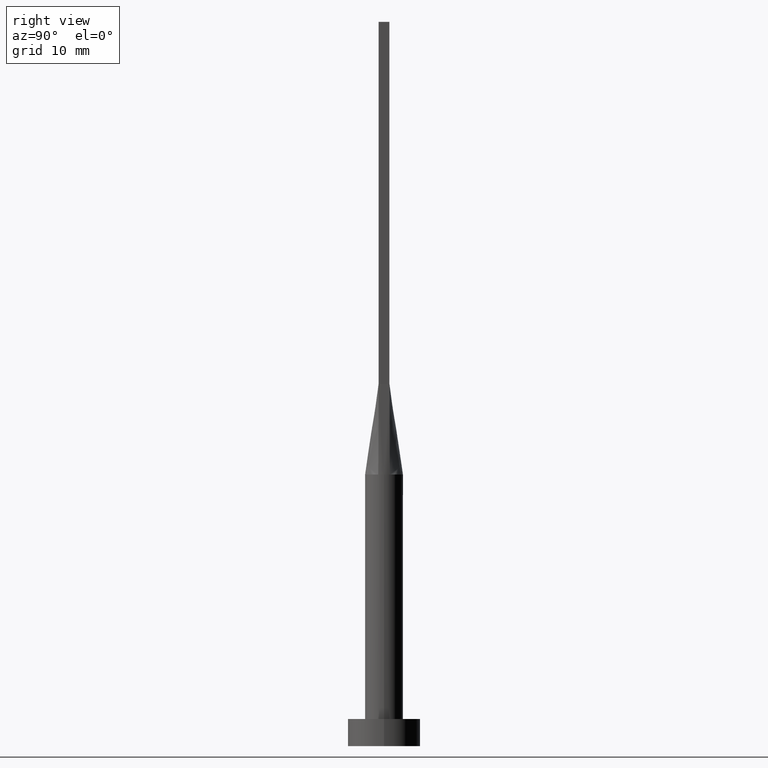
[diagram: clean part render]
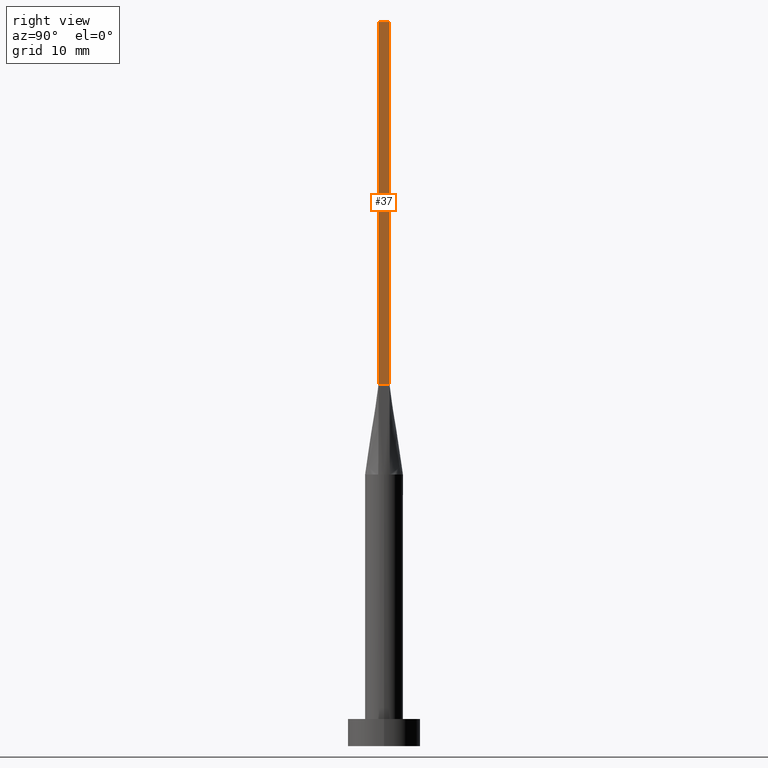
[diagram: same view with one face highlighted and labeled with its STEP entity id]
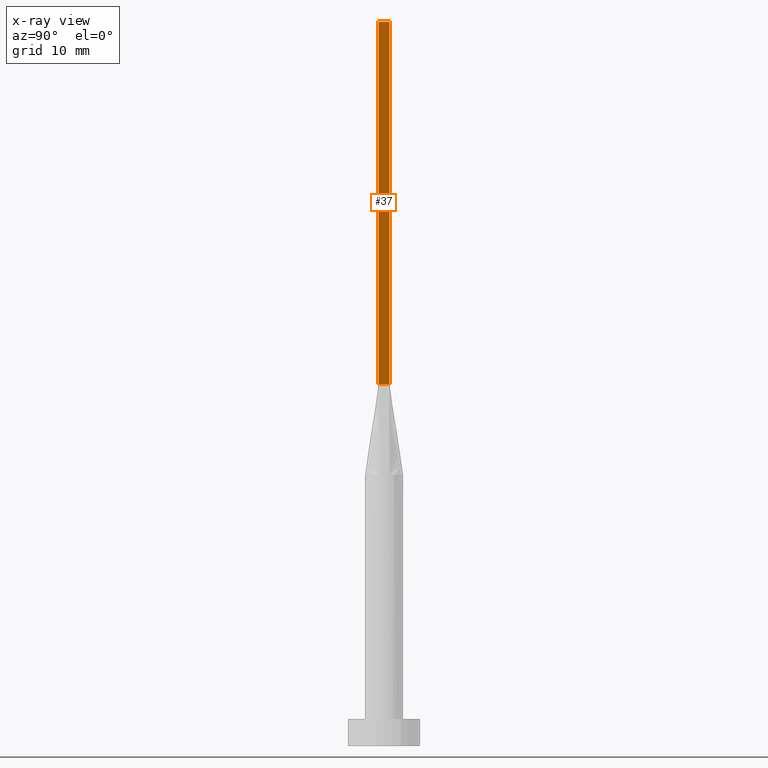
[diagram: x-ray of the same camera — body ghosted, the highlighted face saturated]
A machine part, right view. The second image highlights one B-rep face of the part: STEP entity #37.
The next image is the same camera in x-ray: the body ghosted, the highlighted face saturated — about 0% of this face is hidden behind the body in this view.
In plain terms, the highlighted planar face has unit normal (-1, 0, 0).
Its self-contained STEP definition (entity closure, byte-faithful):
#21 = EDGE_CURVE ( 'NONE', #109, #374, #120, .T. ) ;
#26 = CARTESIAN_POINT ( 'NONE',  ( 1.899999999999999023, -0.5999999999999997558, 40.00000000000000000 ) ) ;
#33 = CARTESIAN_POINT ( 'NONE',  ( 1.899999999999999689, 0.6000000000000001998, 40.00000000000000000 ) ) ;
#37 = ADVANCED_FACE ( 'NONE', ( #38 ), #348, .F. ) ;
#38 = FACE_OUTER_BOUND ( 'NONE', #502, .T. ) ;
#66 = EDGE_CURVE ( 'NONE', #215, #109, #365, .T. ) ;
#102 = CARTESIAN_POINT ( 'NONE',  ( 1.899999999999999689, 0.6000000000000001998, 40.00000000000000000 ) ) ;
#109 = VERTEX_POINT ( 'NONE', #448 ) ;
#120 = LINE ( 'NONE', #485, #299 ) ;
#124 = ORIENTED_EDGE ( 'NONE', *, *, #237, .T. ) ;
#131 = VECTOR ( 'NONE', #235, 1000.000000000000000 ) ;
#161 = ORIENTED_EDGE ( 'NONE', *, *, #21, .F. ) ;
#164 = DIRECTION ( 'NONE',  ( -1.807003620809174139E-16, 1.000000000000000000, -0.000000000000000000 ) ) ;
#170 = DIRECTION ( 'NONE',  ( -5.421010862427522170E-16, -1.000000000000000000, 0.000000000000000000 ) ) ;
#208 = LINE ( 'NONE', #383, #416 ) ;
#215 = VERTEX_POINT ( 'NONE', #344 ) ;
#218 = EDGE_CURVE ( 'NONE', #228, #374, #422, .T. ) ;
#228 = VERTEX_POINT ( 'NONE', #26 ) ;
#232 = CARTESIAN_POINT ( 'NONE',  ( 1.899999999999999023, -0.5999999999999997558, 80.00000000000000000 ) ) ;
#235 = DIRECTION ( 'NONE',  ( 5.421010862427522170E-16, 1.000000000000000000, 0.000000000000000000 ) ) ;
#237 = EDGE_CURVE ( 'NONE', #215, #228, #208, .T. ) ;
#260 = DIRECTION ( 'NONE',  ( -1.000000000000000000, 5.421010862427522170E-16, 0.000000000000000000 ) ) ;
#279 = VECTOR ( 'NONE', #164, 1000.000000000000000 ) ;
#299 = VECTOR ( 'NONE', #307, 1000.000000000000000 ) ;
#307 = DIRECTION ( 'NONE',  ( -0.000000000000000000, -0.000000000000000000, -1.000000000000000000 ) ) ;
#344 = CARTESIAN_POINT ( 'NONE',  ( 1.899999999999999023, -0.5999999999999997558, 80.00000000000000000 ) ) ;
#348 = PLANE ( 'NONE',  #488 ) ;
#365 = LINE ( 'NONE', #232, #131 ) ;
#374 = VERTEX_POINT ( 'NONE', #102 ) ;
#383 = CARTESIAN_POINT ( 'NONE',  ( 1.899999999999999023, -0.5999999999999997558, 80.00000000000000000 ) ) ;
#390 = CARTESIAN_POINT ( 'NONE',  ( 1.899999999999999023, -0.5999999999999997558, 80.00000000000000000 ) ) ;
#416 = VECTOR ( 'NONE', #469, 1000.000000000000000 ) ;
#422 = LINE ( 'NONE', #33, #279 ) ;
#448 = CARTESIAN_POINT ( 'NONE',  ( 1.899999999999999689, 0.6000000000000001998, 80.00000000000000000 ) ) ;
#469 = DIRECTION ( 'NONE',  ( -0.000000000000000000, -0.000000000000000000, -1.000000000000000000 ) ) ;
#485 = CARTESIAN_POINT ( 'NONE',  ( 1.899999999999999689, 0.6000000000000001998, 80.00000000000000000 ) ) ;
#488 = AXIS2_PLACEMENT_3D ( 'NONE', #390, #260, #170 ) ;
#502 = EDGE_LOOP ( 'NONE', ( #533, #161, #557, #124 ) ) ;
#533 = ORIENTED_EDGE ( 'NONE', *, *, #218, .T. ) ;
#557 = ORIENTED_EDGE ( 'NONE', *, *, #66, .F. ) ;